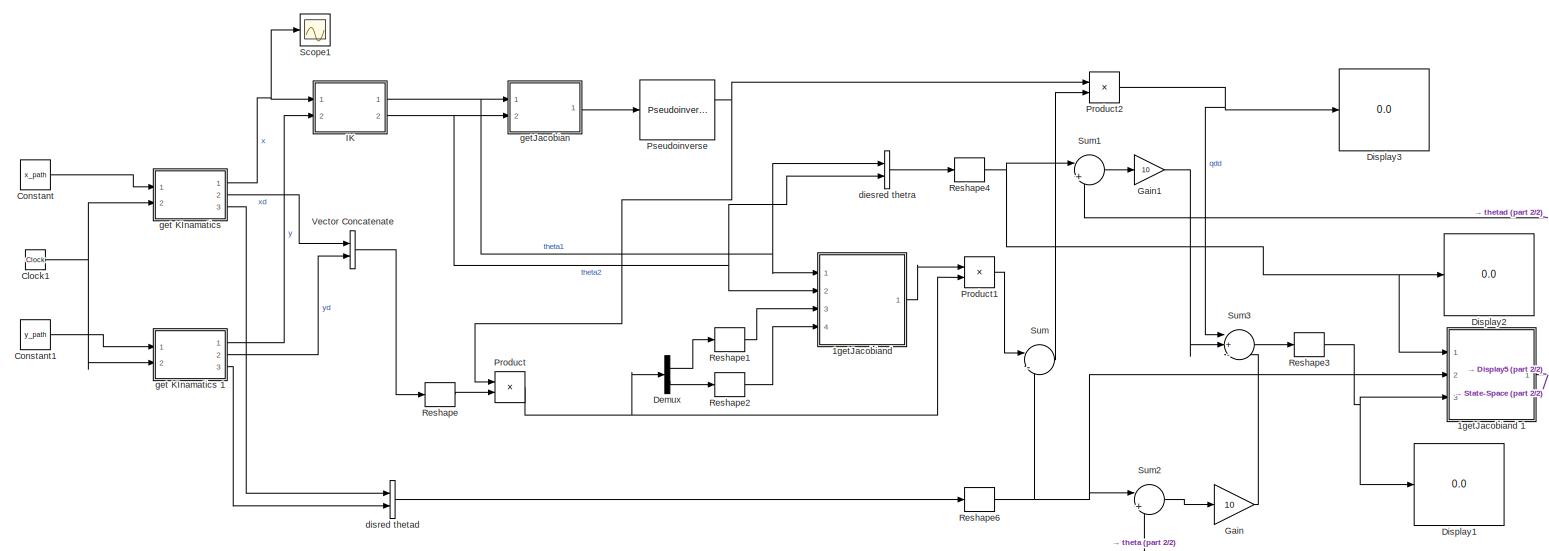
[diagram: root canvas - part 1/2, most of the canvas]
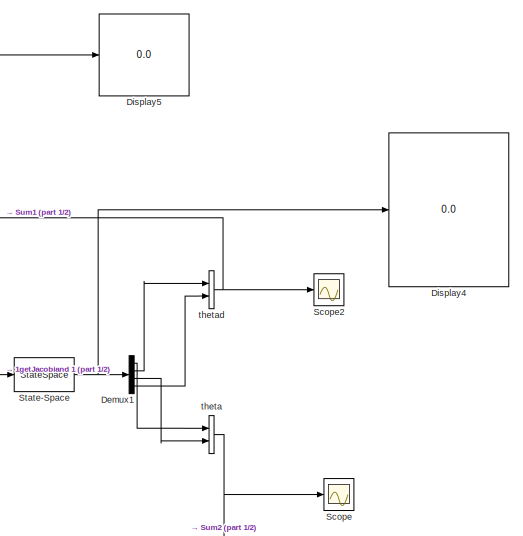
[diagram: root canvas - part 2/2, right side, full height]
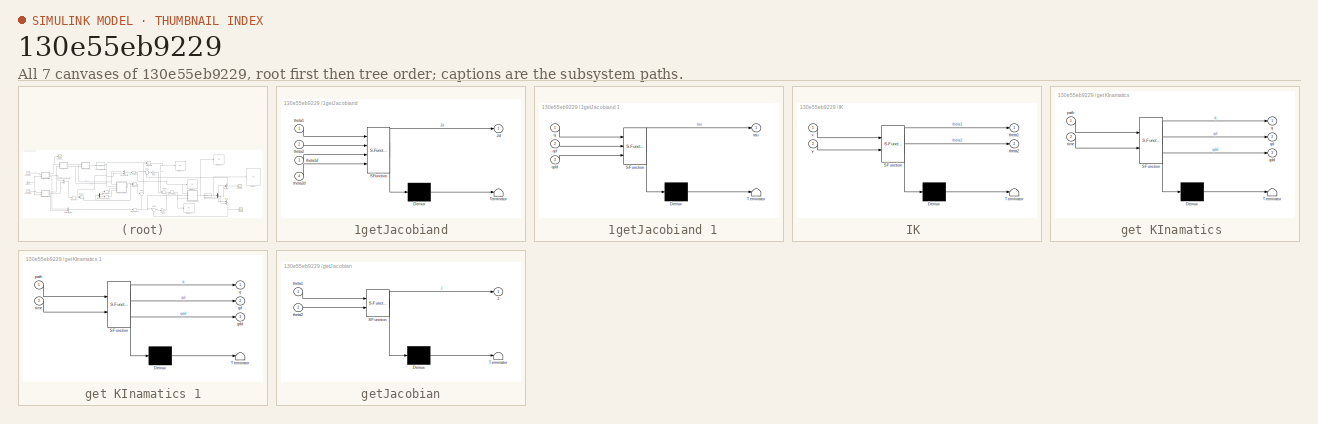
[diagram: thumbnail index - all 7 canvases of the model, root first then tree order]
MODEL slx_130e55eb9229
KIND model
CONFIG AbsTol = auto
CONFIG FixedStep = 1
CONFIG MaxStep = auto
CONFIG MinStep = auto
CONFIG RelTol = 1e-3
CONFIG SampleTimeConstraint = Unconstrained
CONFIG Solver = FixedStepAuto
CONFIG SolverMode = Auto
CONFIG SolverName = FixedStepAuto
CONFIG StartTime = 0.0
CONFIG StopTime = 5
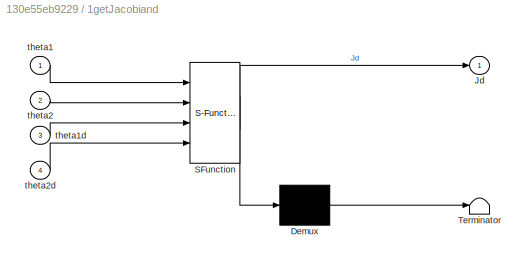
BLOCK [SubSystem]  1getJacobiand 
  ErrorFcn = Stateflow.Translate.translate
  PermitHierarchicalResolution = ExplicitOnly
  Ports = [4, 1]
  RequestExecContextInheritance = off
  SFBlockType = MATLAB Function
  TreatAsAtomicUnit = on
  Variant = off
BLOCK [Demux]  1getJacobiand / Demux 
  Outputs = 1
  Ports = [1, 1]
BLOCK [S-Function]  1getJacobiand / SFunction 
  EnableBusSupport = on
  FunctionName = sf_sfun
  PortCounts = [4 2]
  Ports = [4, 2]
  SFunctionDeploymentMode = off
  Tag = Stateflow S-Function problem2 5
BLOCK [Terminator]  1getJacobiand / Terminator 
BLOCK [Outport]  1getJacobiand /Jd
  IconDisplay = Port number
BLOCK [Inport]  1getJacobiand /theta1
  IconDisplay = Port number
BLOCK [Inport]  1getJacobiand /theta1d
  IconDisplay = Port number
  Port = 3
BLOCK [Inport]  1getJacobiand /theta2
  IconDisplay = Port number
  Port = 2
BLOCK [Inport]  1getJacobiand /theta2d
  IconDisplay = Port number
  Port = 4
BLOCK [SubSystem]  1getJacobiand 1
  ErrorFcn = Stateflow.Translate.translate
  PermitHierarchicalResolution = ExplicitOnly
  Ports = [3, 1]
  RequestExecContextInheritance = off
  SFBlockType = MATLAB Function
  TreatAsAtomicUnit = on
  Variant = off
BLOCK [Demux]  1getJacobiand 1/ Demux 
  Outputs = 1
  Ports = [1, 1]
BLOCK [S-Function]  1getJacobiand 1/ SFunction 
  EnableBusSupport = on
  FunctionName = sf_sfun
  PortCounts = [3 2]
  Ports = [3, 2]
  SFunctionDeploymentMode = off
  Tag = Stateflow S-Function problem2 6
BLOCK [Terminator]  1getJacobiand 1/ Terminator 
BLOCK [Inport]  1getJacobiand 1/q
  IconDisplay = Port number
BLOCK [Inport]  1getJacobiand 1/qd
  IconDisplay = Port number
  Port = 2
BLOCK [Inport]  1getJacobiand 1/qdd
  IconDisplay = Port number
  Port = 3
BLOCK [Outport]  1getJacobiand 1/tau
  IconDisplay = Port number
BLOCK [Clock] Clock1
BLOCK [Constant] Constant
  Value = x_path
BLOCK [Constant] Constant1
  Value = y_path
BLOCK [Demux] Demux
  DisplayOption = bar
  Outputs = 2
  Ports = [1, 2]
BLOCK [Demux] Demux1
  DisplayOption = bar
  Ports = [1, 4]
BLOCK [Display] Display1
  Decimation = 1
  Ports = [1]
BLOCK [Display] Display2
  Decimation = 1
  Ports = [1]
BLOCK [Display] Display3
  Decimation = 1
  Ports = [1]
BLOCK [Display] Display4
  Decimation = 1
  Ports = [1]
BLOCK [Display] Display5
  Decimation = 1
  Ports = [1]
BLOCK [Gain] Gain
  Gain = 10
  OutDataTypeStr = Inherit: Inherit via internal rule
  ParamDataTypeStr = Inherit: Inherit via internal rule
  SaturateOnIntegerOverflow = off
BLOCK [Gain] Gain1
  Gain = 10
  OutDataTypeStr = Inherit: Inherit via internal rule
  ParamDataTypeStr = Inherit: Inherit via internal rule
  SaturateOnIntegerOverflow = off
BLOCK [SubSystem] IK 
  ErrorFcn = Stateflow.Translate.translate
  PermitHierarchicalResolution = ExplicitOnly
  Ports = [2, 2]
  RequestExecContextInheritance = off
  SFBlockType = MATLAB Function
  TreatAsAtomicUnit = on
  Variant = off
BLOCK [Demux] IK / Demux 
  Outputs = 1
  Ports = [1, 1]
BLOCK [S-Function] IK / SFunction 
  EnableBusSupport = on
  FunctionName = sf_sfun
  PortCounts = [2 3]
  Ports = [2, 3]
  SFunctionDeploymentMode = off
  Tag = Stateflow S-Function problem2 3
BLOCK [Terminator] IK / Terminator 
BLOCK [Outport] IK /theta1
  IconDisplay = Port number
BLOCK [Outport] IK /theta2
  IconDisplay = Port number
  Port = 2
BLOCK [Inport] IK /x
  IconDisplay = Port number
BLOCK [Inport] IK /y
  IconDisplay = Port number
  Port = 2
BLOCK [Product] Product
  InputSameDT = off
  Multiplication = Matrix(*)
  OutDataTypeStr = Inherit: Inherit via internal rule
  Ports = [2, 1]
  RndMeth = Floor
  SaturateOnIntegerOverflow = off
BLOCK [Product] Product1
  InputSameDT = off
  Multiplication = Matrix(*)
  OutDataTypeStr = Inherit: Inherit via internal rule
  Ports = [2, 1]
  RndMeth = Floor
  SaturateOnIntegerOverflow = off
BLOCK [Product] Product2
  InputSameDT = off
  Multiplication = Matrix(*)
  OutDataTypeStr = Inherit: Inherit via internal rule
  Ports = [2, 1]
  RndMeth = Floor
  SaturateOnIntegerOverflow = off
BLOCK [Reference] Pseudoinverse  REF=dspinverses/Pseudoinverse
  Ports = [1, 2]
  SourceBlock = dspinverses/Pseudoinverse
  SourceType = Pseudoinverse
BLOCK [Reshape] Reshape
  OutputDimensionality = Column vector (2-D)
  Ports = [1, 1]
BLOCK [Reshape] Reshape1
  OutputDimensionality = Customize
  OutputDimensions = 1
  Ports = [1, 1]
BLOCK [Reshape] Reshape2
  OutputDimensionality = Customize
  OutputDimensions = 1
  Ports = [1, 1]
BLOCK [Reshape] Reshape3
  OutputDimensionality = Column vector (2-D)
  Ports = [1, 1]
BLOCK [Reshape] Reshape4
  OutputDimensionality = Column vector (2-D)
  Ports = [1, 1]
BLOCK [Reshape] Reshape6
  OutputDimensionality = Column vector (2-D)
  Ports = [1, 1]
BLOCK [Scope] Scope
  Ports = [1]
  ScopeSpecificationString = Simulink.scopes.TimeScopeBlockCfg('CurrentConfiguration', extmgr.ConfigurationSet(extmgr.Configuration('Core','General UI',true),extmgr.Configuration('Core','Source UI',true),extmgr.Configuration('Sources','WiredSimulink',true,'DataLoggingLimitDataPoints',true,'DataLoggingSaveFormat','Array','DataLoggingDecimation','1','DataLoggingDecimateData',true),extmgr.Configuration('Visuals','Time Domain',tr...<+1508ch>
BLOCK [Scope] Scope1
  Ports = [1]
  ScopeSpecificationString = Simulink.scopes.TimeScopeBlockCfg('CurrentConfiguration', extmgr.ConfigurationSet(extmgr.Configuration('Core','General UI',true),extmgr.Configuration('Core','Source UI',true),extmgr.Configuration('Sources','WiredSimulink',true,'DataLoggingLimitDataPoints',true,'DataLoggingSaveFormat','Array','DataLoggingDecimation','1','DataLoggingDecimateData',true,'DataLoggingVariableName','ScopeData1'),extmgr.C...<+1527ch>
BLOCK [Scope] Scope2
  Ports = [1]
  ScopeSpecificationString = C++SS(StrPVP('SaveName','ScopeData1'))
BLOCK [StateSpace] State-Space
  A = A
  B = B
  C = C
  D = D
  Ports = [1, 1]
  X0 = state
BLOCK [Sum] Sum
  IconShape = round
  InputSameDT = off
  Inputs = |-+
  OutDataTypeStr = Inherit: Inherit via internal rule
  Ports = [2, 1]
  SaturateOnIntegerOverflow = off
BLOCK [Sum] Sum1
  IconShape = round
  InputSameDT = off
  Inputs = |+-
  OutDataTypeStr = Inherit: Inherit via internal rule
  Ports = [2, 1]
  SaturateOnIntegerOverflow = off
BLOCK [Sum] Sum2
  IconShape = round
  InputSameDT = off
  Inputs = |+-
  OutDataTypeStr = Inherit: Inherit via internal rule
  Ports = [2, 1]
  SaturateOnIntegerOverflow = off
BLOCK [Sum] Sum3
  IconShape = round
  InputSameDT = off
  Inputs = |+--
  OutDataTypeStr = Inherit: Inherit via internal rule
  Ports = [3, 1]
  SaturateOnIntegerOverflow = off
BLOCK [Concatenate] Vector Concatenate
  Ports = [2, 1]
BLOCK [Concatenate] diesred thetra
  Ports = [2, 1]
BLOCK [Concatenate] disred thetad 
  Ports = [2, 1]
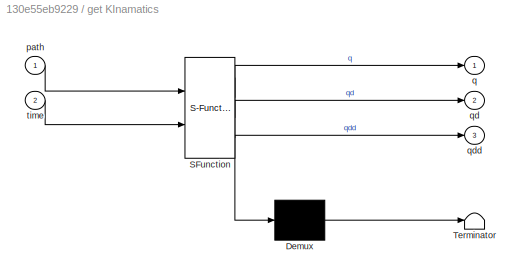
BLOCK [SubSystem] get KInamatics 
  ErrorFcn = Stateflow.Translate.translate
  PermitHierarchicalResolution = ExplicitOnly
  Ports = [2, 3]
  RequestExecContextInheritance = off
  SFBlockType = MATLAB Function
  TreatAsAtomicUnit = on
  Variant = off
BLOCK [Demux] get KInamatics / Demux 
  Outputs = 1
  Ports = [1, 1]
BLOCK [S-Function] get KInamatics / SFunction 
  EnableBusSupport = on
  FunctionName = sf_sfun
  PortCounts = [2 4]
  Ports = [2, 4]
  SFunctionDeploymentMode = off
  Tag = Stateflow S-Function problem2 2
BLOCK [Terminator] get KInamatics / Terminator 
BLOCK [Inport] get KInamatics /path
  IconDisplay = Port number
BLOCK [Outport] get KInamatics /q
  IconDisplay = Port number
BLOCK [Outport] get KInamatics /qd
  IconDisplay = Port number
  Port = 2
BLOCK [Outport] get KInamatics /qdd
  IconDisplay = Port number
  Port = 3
BLOCK [Inport] get KInamatics /time
  IconDisplay = Port number
  Port = 2
BLOCK [SubSystem] get KInamatics 1
  ErrorFcn = Stateflow.Translate.translate
  PermitHierarchicalResolution = ExplicitOnly
  Ports = [2, 3]
  RequestExecContextInheritance = off
  SFBlockType = MATLAB Function
  TreatAsAtomicUnit = on
  Variant = off
BLOCK [Demux] get KInamatics 1/ Demux 
  Outputs = 1
  Ports = [1, 1]
BLOCK [S-Function] get KInamatics 1/ SFunction 
  EnableBusSupport = on
  FunctionName = sf_sfun
  PortCounts = [2 4]
  Ports = [2, 4]
  SFunctionDeploymentMode = off
  Tag = Stateflow S-Function problem2 1
BLOCK [Terminator] get KInamatics 1/ Terminator 
BLOCK [Inport] get KInamatics 1/path
  IconDisplay = Port number
BLOCK [Outport] get KInamatics 1/q
  IconDisplay = Port number
BLOCK [Outport] get KInamatics 1/qd
  IconDisplay = Port number
  Port = 2
BLOCK [Outport] get KInamatics 1/qdd
  IconDisplay = Port number
  Port = 3
BLOCK [Inport] get KInamatics 1/time
  IconDisplay = Port number
  Port = 2
BLOCK [SubSystem] getJacobian
  ErrorFcn = Stateflow.Translate.translate
  PermitHierarchicalResolution = ExplicitOnly
  Ports = [2, 1]
  RequestExecContextInheritance = off
  SFBlockType = MATLAB Function
  TreatAsAtomicUnit = on
  Variant = off
BLOCK [Demux] getJacobian/ Demux 
  Outputs = 1
  Ports = [1, 1]
BLOCK [S-Function] getJacobian/ SFunction 
  EnableBusSupport = on
  FunctionName = sf_sfun
  PortCounts = [2 2]
  Ports = [2, 2]
  SFunctionDeploymentMode = off
  Tag = Stateflow S-Function problem2 4
BLOCK [Terminator] getJacobian/ Terminator 
BLOCK [Outport] getJacobian/J
  IconDisplay = Port number
BLOCK [Inport] getJacobian/theta1
  IconDisplay = Port number
BLOCK [Inport] getJacobian/theta2
  IconDisplay = Port number
  Port = 2
BLOCK [Concatenate] theta 
  Ports = [2, 1]
BLOCK [Concatenate] thetad 
  Ports = [2, 1]
NET  1getJacobiand 1:1 -> Display5:1, State-Space:1
LINE  1getJacobiand :1 -> Product1:1
NET Clock1:1 -> get KInamatics 1:2, get KInamatics :2
LINE Constant1:1 -> get KInamatics 1:1
LINE Constant:1 -> get KInamatics :1
LINE Demux1:1 -> theta :1
LINE Demux1:2 -> thetad :1
LINE Demux1:3 -> theta :2
LINE Demux1:4 -> thetad :2
LINE Demux:1 -> Reshape1:1
LINE Demux:2 -> Reshape2:1
LINE Gain1:1 -> Sum3:2
LINE Gain:1 -> Sum3:3
NET IK :1 ->  1getJacobiand :1, diesred thetra:1, getJacobian:1
NET IK :2 ->  1getJacobiand :2, diesred thetra:2, getJacobian:2
LINE Product1:1 -> Sum:1
NET Product2:1 -> Display3:1, Sum3:1
NET Product:1 -> Demux:1, Product1:2
NET Pseudoinverse:1 -> Product2:1, Product:1
LINE Reshape1:1 ->  1getJacobiand :3
LINE Reshape2:1 ->  1getJacobiand :4
NET Reshape3:1 ->  1getJacobiand 1:3, Display1:1
NET Reshape4:1 ->  1getJacobiand 1:1, Display2:1, Sum1:1
NET Reshape6:1 ->  1getJacobiand 1:2, Sum2:1, Sum:2
LINE Reshape:1 -> Product:2
NET State-Space:1 -> Demux1:1, Display4:1
LINE Sum1:1 -> Gain1:1
LINE Sum2:1 -> Gain:1
LINE Sum3:1 -> Reshape3:1
LINE Sum:1 -> Product2:2
LINE Vector Concatenate:1 -> Reshape:1
LINE diesred thetra:1 -> Reshape4:1
LINE disred thetad :1 -> Reshape6:1
LINE get KInamatics 1:1 -> IK :2
LINE get KInamatics 1:2 -> Vector Concatenate:2
LINE get KInamatics 1:3 -> disred thetad :2
NET get KInamatics :1 -> IK :1, Scope1:1
LINE get KInamatics :2 -> Vector Concatenate:1
LINE get KInamatics :3 -> disred thetad :1
LINE getJacobian:1 -> Pseudoinverse:1
NET theta :1 -> Scope:1, Sum2:2
NET thetad :1 -> Scope2:1, Sum1:2
note: NET lines group one-source signal fan-out (src -> all destinations, sorted); 1:1 wires keep LINE
CHART get KInamatics
1 states=1 transitions=1
  STATE_LABEL 'eML_blk_kernel()'
  STATE_LABEL 'SCRIPT:\nfunction [ q,qd,qdd] = fcn(path, time)\n%#codegen\n[q qd qdd] = getKin(path, time)\n'
CHART get KInamatics
 states=1 transitions=1
  STATE_LABEL 'eML_blk_kernel()'
  STATE_LABEL 'SCRIPT:\nfunction [ q,qd,qdd] = fcn(path, time)\n%#codegen\n[q qd qdd] = getKin(path, time)\n'
CHART IK
 states=1 transitions=1
  STATE_LABEL 'eML_blk_kernel()'
  STATE_LABEL 'SCRIPT:\nfunction [ theta1, theta2] = fcn(x, y)\n%#codegen\n[theta1 theta2] = IK(x, y)\n'
CHART getJacobian states=1 transitions=1
  STATE_LABEL 'eML_blk_kernel()'
  STATE_LABEL 'SCRIPT:\nfunction J  = fcn(theta1, theta2)\n%#codegen\nJ = getJacobian(theta1,theta2);\n'
CHART 
1getJacobiand
 states=1 transitions=1
  STATE_LABEL 'eML_blk_kernel()'
  STATE_LABEL 'SCRIPT:\nfunction Jd  = fcn(theta1,theta2, theta1d, theta2d)\n%#codegen\nJd = getJacobiandot(theta1,theta1d,theta2,theta2d);\n'
CHART 
1getJacobiand
1 states=1 transitions=1
  STATE_LABEL 'eML_blk_kernel()'
  STATE_LABEL 'SCRIPT:\nfunction tau  = fcn(q, qd,qdd)\n%#codegen\nqdd\ngetTorque(q,qd,qdd);\ntau = [5;5]\n'
